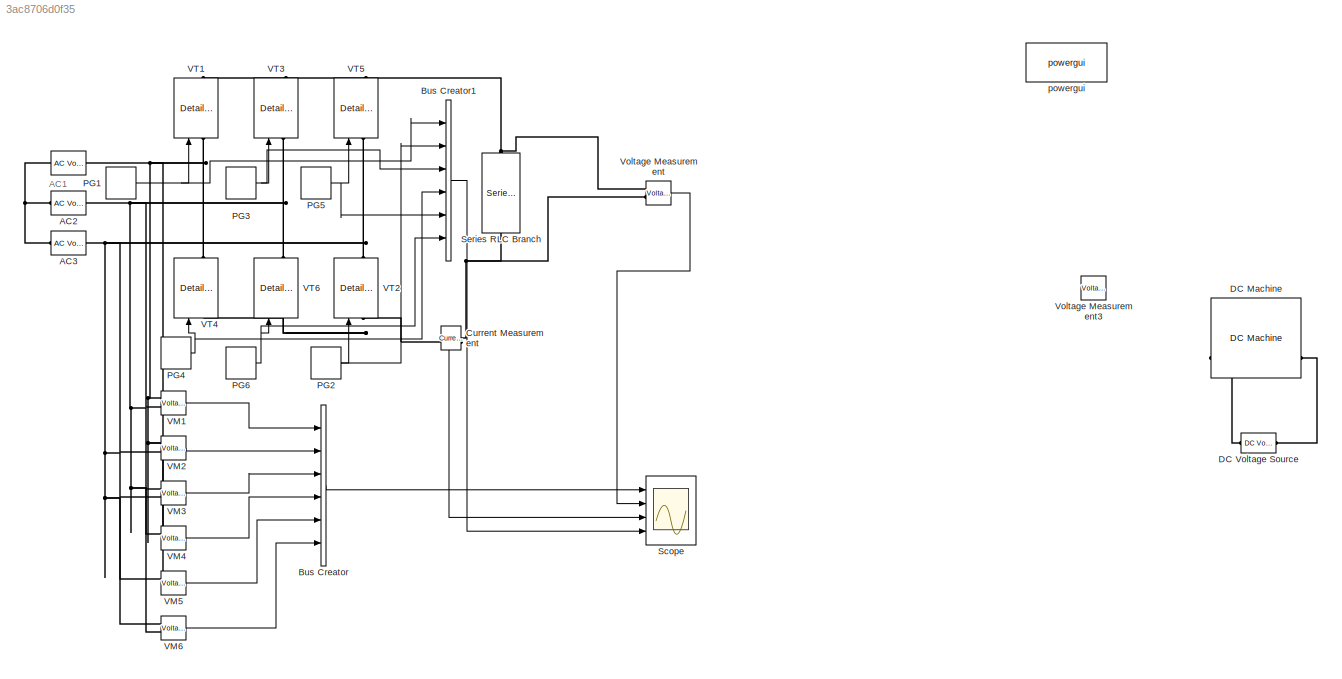
MODEL slx_3ac8706d0f35
KIND model
CONFIG AbsTol = auto
CONFIG EnableMultiTasking = off
CONFIG FixedStep = auto
CONFIG MaxStep = auto
CONFIG MinStep = auto
CONFIG RelTol = 1e-3
CONFIG SampleTimeConstraint = Unconstrained
CONFIG SolverName = VariableStepAuto
CONFIG StartTime = 0.0
CONFIG StopTime = 0.06
BLOCK [Reference]    REF=spsACVoltageSourceLib/AC Voltage Source
  Ports = [0, 0, 0, 0, 0, 1, 1]
  SourceBlock = spsACVoltageSourceLib/AC Voltage Source
  SourceProductBaseCode = PS
  SourceType = AC Voltage Source
BLOCK [Reference] AC2   REF=spsACVoltageSourceLib/AC Voltage Source
  Ports = [0, 0, 0, 0, 0, 1, 1]
  SourceBlock = spsACVoltageSourceLib/AC Voltage Source
  SourceProductBaseCode = PS
  SourceType = AC Voltage Source
BLOCK [Reference] AC3  REF=spsACVoltageSourceLib/AC Voltage Source
  Ports = [0, 0, 0, 0, 0, 1, 1]
  SourceBlock = spsACVoltageSourceLib/AC Voltage Source
  SourceProductBaseCode = PS
  SourceType = AC Voltage Source
BLOCK [BusCreator] Bus Creator
  DisplayOption = bar
  InheritFromInputs = on
  Inputs = 6
  Ports = [6, 1]
BLOCK [BusCreator] Bus Creator1
  DisplayOption = bar
  InheritFromInputs = on
  Inputs = 6
  Ports = [6, 1]
BLOCK [Reference] Current Measurement  REF=spsCurrentMeasurementLib/Current Measurement
  NameLocation = top
  Ports = [0, 1, 0, 0, 0, 1, 1]
  SourceBlock = spsCurrentMeasurementLib/Current Measurement
  SourceProductBaseCode = PS
  SourceType = Current Measurement
  UserDataPersistent = on
BLOCK [Reference] DC Machine  REF=spsDCMachineLib/DC Machine
  Ports = [1, 1, 0, 0, 0, 2, 2]
  SourceBlock = spsDCMachineLib/DC Machine
  SourceProductBaseCode = PS
  SourceType = DC machine
BLOCK [Reference] DC Voltage Source  REF=spsDCVoltageSourceLib/DC Voltage Source
  NameLocation = right
  Ports = [0, 0, 0, 0, 0, 1, 1]
  SourceBlock = spsDCVoltageSourceLib/DC Voltage Source
  SourceProductBaseCode = PS
  SourceType = DC Voltage Source
BLOCK [DiscretePulseGenerator] PG1
  Period = 0.02
  PhaseDelay = 0.0067
  Ports = [0, 1]
  PulseType = Time based
  PulseWidth = 20
BLOCK [DiscretePulseGenerator] PG2
  Period = 0.02
  PhaseDelay = 0.01
  Ports = [0, 1]
  PulseType = Time based
  PulseWidth = 20
BLOCK [DiscretePulseGenerator] PG3
  Period = 0.02
  PhaseDelay = 0.0133
  Ports = [0, 1]
  PulseType = Time based
  PulseWidth = 20
BLOCK [DiscretePulseGenerator] PG4
  Period = 0.02
  PhaseDelay = 0.0167
  Ports = [0, 1]
  PulseType = Time based
  PulseWidth = 20
BLOCK [DiscretePulseGenerator] PG5
  Period = 0.02
  PhaseDelay = 0.02
  Ports = [0, 1]
  PulseType = Time based
  PulseWidth = 20
BLOCK [DiscretePulseGenerator] PG6
  Period = 0.02
  PhaseDelay = 0.0233
  Ports = [0, 1]
  PulseType = Time based
  PulseWidth = 20
BLOCK [Scope] Scope
  Floating = off
  NumInputPorts = 4
  Ports = [4]
  ScopeSpecificationString = Simulink.scopes.TimeScopeBlockCfg('CurrentConfiguration', extmgr.ConfigurationSet(extmgr.Configuration('Core','General UI',true),extmgr.Configuration('Core','Source UI',true),extmgr.Configuration('Sources','WiredSimulink',true),extmgr.Configuration('Visuals','Time Domain',true,'SerializedDisplays',{struct('MinYLimReal','-476.31397','MaxYLimReal','476.31397','YLabelReal','','MinYLimMag',' 0.00000',...<+3438ch>
BLOCK [Reference] Series RLC Branch  REF=spsSeriesRLCBranchLib/Series RLC Branch
  NameLocation = left
  Ports = [0, 0, 0, 0, 0, 1, 1]
  SourceBlock = spsSeriesRLCBranchLib/Series RLC Branch
  SourceProductBaseCode = PS
  SourceType = Series RLC Branch
BLOCK [Reference] VM1  REF=spsVoltageMeasurementLib/Voltage Measurement
  Ports = [0, 1, 0, 0, 0, 2]
  SourceBlock = spsVoltageMeasurementLib/Voltage Measurement
  SourceProductBaseCode = PS
  SourceType = Voltage Measurement
  UserDataPersistent = on
BLOCK [Reference] VM2  REF=spsVoltageMeasurementLib/Voltage Measurement
  Ports = [0, 1, 0, 0, 0, 2]
  SourceBlock = spsVoltageMeasurementLib/Voltage Measurement
  SourceProductBaseCode = PS
  SourceType = Voltage Measurement
  UserDataPersistent = on
BLOCK [Reference] VM3  REF=spsVoltageMeasurementLib/Voltage Measurement
  Ports = [0, 1, 0, 0, 0, 2]
  SourceBlock = spsVoltageMeasurementLib/Voltage Measurement
  SourceProductBaseCode = PS
  SourceType = Voltage Measurement
  UserDataPersistent = on
BLOCK [Reference] VM4  REF=spsVoltageMeasurementLib/Voltage Measurement
  Ports = [0, 1, 0, 0, 0, 2]
  SourceBlock = spsVoltageMeasurementLib/Voltage Measurement
  SourceProductBaseCode = PS
  SourceType = Voltage Measurement
  UserDataPersistent = on
BLOCK [Reference] VM5  REF=spsVoltageMeasurementLib/Voltage Measurement
  Ports = [0, 1, 0, 0, 0, 2]
  SourceBlock = spsVoltageMeasurementLib/Voltage Measurement
  SourceProductBaseCode = PS
  SourceType = Voltage Measurement
  UserDataPersistent = on
BLOCK [Reference] VM6  REF=spsVoltageMeasurementLib/Voltage Measurement
  Ports = [0, 1, 0, 0, 0, 2]
  SourceBlock = spsVoltageMeasurementLib/Voltage Measurement
  SourceProductBaseCode = PS
  SourceType = Voltage Measurement
  UserDataPersistent = on
BLOCK [Reference] VT1   REF=spsDetailedThyristorLib/Detailed Thyristor
  NameLocation = right
  Ports = [1, 1, 0, 0, 0, 1, 1]
  SourceBlock = spsDetailedThyristorLib/Detailed Thyristor
  SourceProductBaseCode = PS
  SourceType = Detailed Thyristor
BLOCK [Reference] VT2  REF=spsDetailedThyristorLib/Detailed Thyristor
  NameLocation = right
  Ports = [1, 1, 0, 0, 0, 1, 1]
  SourceBlock = spsDetailedThyristorLib/Detailed Thyristor
  SourceProductBaseCode = PS
  SourceType = Detailed Thyristor
BLOCK [Reference] VT3  REF=spsDetailedThyristorLib/Detailed Thyristor
  NameLocation = right
  Ports = [1, 1, 0, 0, 0, 1, 1]
  SourceBlock = spsDetailedThyristorLib/Detailed Thyristor
  SourceProductBaseCode = PS
  SourceType = Detailed Thyristor
BLOCK [Reference] VT4  REF=spsDetailedThyristorLib/Detailed Thyristor
  NameLocation = right
  Ports = [1, 1, 0, 0, 0, 1, 1]
  SourceBlock = spsDetailedThyristorLib/Detailed Thyristor
  SourceProductBaseCode = PS
  SourceType = Detailed Thyristor
BLOCK [Reference] VT5  REF=spsDetailedThyristorLib/Detailed Thyristor
  NameLocation = right
  Ports = [1, 1, 0, 0, 0, 1, 1]
  SourceBlock = spsDetailedThyristorLib/Detailed Thyristor
  SourceProductBaseCode = PS
  SourceType = Detailed Thyristor
BLOCK [Reference] VT6  REF=spsDetailedThyristorLib/Detailed Thyristor
  NameLocation = right
  Ports = [1, 1, 0, 0, 0, 1, 1]
  SourceBlock = spsDetailedThyristorLib/Detailed Thyristor
  SourceProductBaseCode = PS
  SourceType = Detailed Thyristor
BLOCK [Reference] Voltage Measurement  REF=spsVoltageMeasurementLib/Voltage Measurement
  Ports = [0, 1, 0, 0, 0, 2]
  SourceBlock = spsVoltageMeasurementLib/Voltage Measurement
  SourceProductBaseCode = PS
  SourceType = Voltage Measurement
  UserDataPersistent = on
BLOCK [Reference] Voltage Measurement3  REF=spsVoltageMeasurementLib/Voltage Measurement
  Ports = [0, 1, 0, 0, 0, 2]
  SourceBlock = spsVoltageMeasurementLib/Voltage Measurement
  SourceProductBaseCode = PS
  SourceType = Voltage Measurement
  UserDataPersistent = on
BLOCK [Reference] powergui  REF=spspowerguiLib/powergui
  Ports = []
  Priority = 1
  SourceBlock = spspowerguiLib/powergui
  SourceProductBaseCode = PS
  SourceType = PSB option menu block
ANNOTATION (root): AC1
LINE Bus Creator1:1 -> Scope:4
LINE Bus Creator:1 -> Scope:1
LINE Current Measurement:1 -> Scope:3
NET PG1:1 -> Bus Creator1:1, VT1 :1
NET PG2:1 -> Bus Creator1:2, VT2:1
NET PG3:1 -> Bus Creator1:3, VT3:1
NET PG4:1 -> Bus Creator1:4, VT4:1
NET PG5:1 -> Bus Creator1:5, VT5:1
NET PG6:1 -> Bus Creator1:6, VT6:1
LINE VM1:1 -> Bus Creator:1
LINE VM2:1 -> Bus Creator:2
LINE VM3:1 -> Bus Creator:3
LINE VM4:1 -> Bus Creator:4
LINE VM5:1 -> Bus Creator:5
LINE VM6:1 -> Bus Creator:6
LINE Voltage Measurement:1 -> Scope:2
PNET net1:  :LConn1 -- AC2 :LConn1 -- AC3:LConn1
PNET net2:  :RConn1 -- VM1:LConn1 -- VM2:LConn1 -- VM4:LConn2 -- VM5:LConn2 -- VT1 :LConn1 -- VT4:RConn1
PNET net3: AC2 :RConn1 -- VM1:LConn2 -- VM3:LConn1 -- VM4:LConn1 -- VM6:LConn2 -- VT3:LConn1 -- VT6:RConn1
PNET net4: AC3:RConn1 -- VM2:LConn2 -- VM3:LConn2 -- VM5:LConn1 -- VM6:LConn1 -- VT2:RConn1 -- VT5:LConn1
PNET net5: Current Measurement:LConn1 -- Series RLC Branch:RConn1 -- Voltage Measurement:LConn2
PNET net6: Current Measurement:RConn1 -- VT2:LConn1 -- VT4:LConn1 -- VT6:LConn1
PLINE DC Machine:LConn2 -- DC Voltage Source:RConn1
PLINE DC Machine:RConn2 -- DC Voltage Source:LConn1
PNET net7: Series RLC Branch:LConn1 -- VT1 :RConn1 -- VT3:RConn1 -- VT5:RConn1 -- Voltage Measurement:LConn1
note: NET lines group one-source signal fan-out (src -> all destinations, sorted); 1:1 wires keep LINE; PNET lines group multi-terminal physical nets as a canonical sorted terminal list (undirected conserving connections); 2-terminal nets keep the pairwise PLINE form
